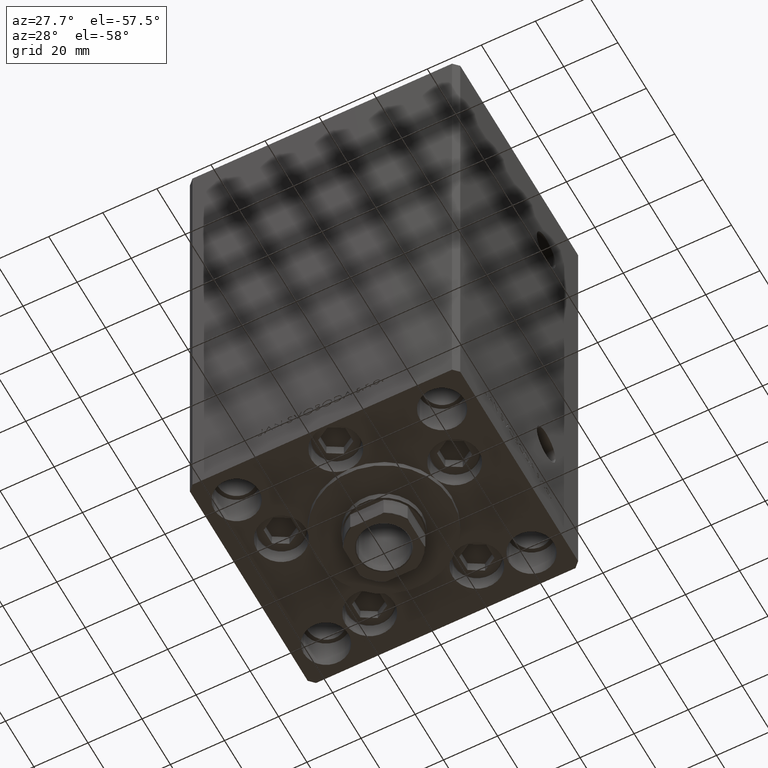
[diagram: clean part render]
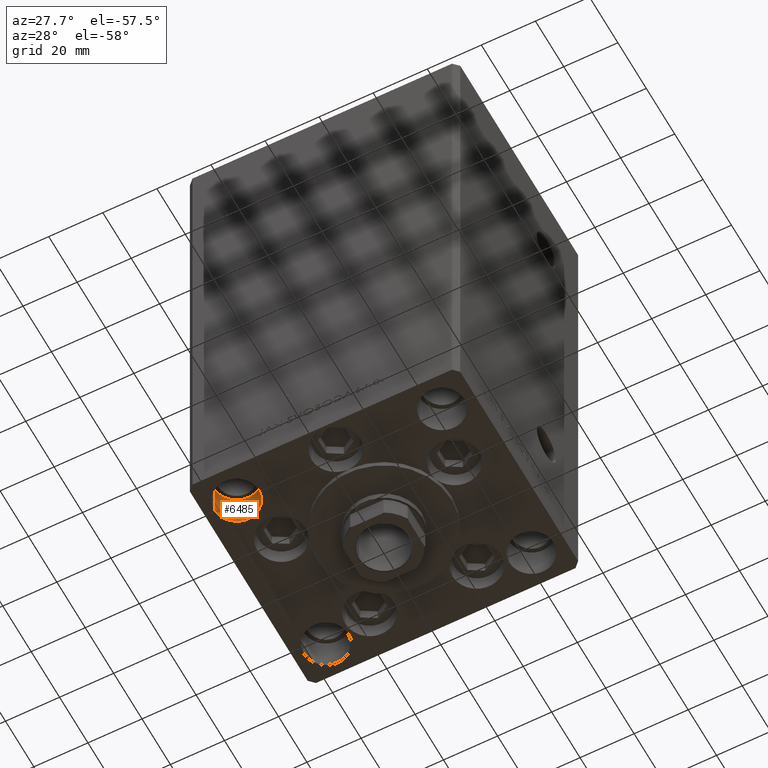
[diagram: same view with one face highlighted and labeled with its STEP entity id]
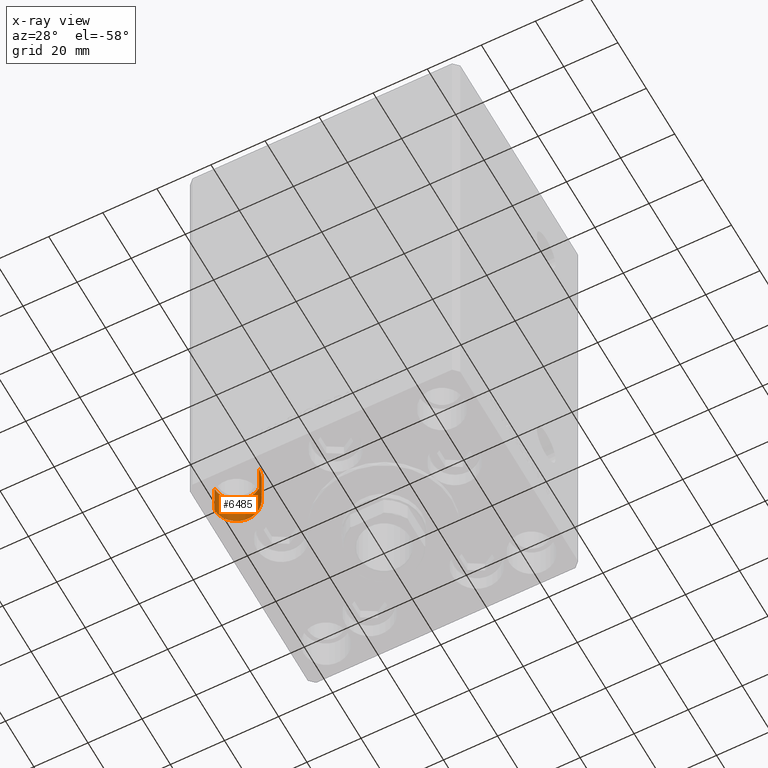
[diagram: x-ray of the same camera — body ghosted, the highlighted face saturated]
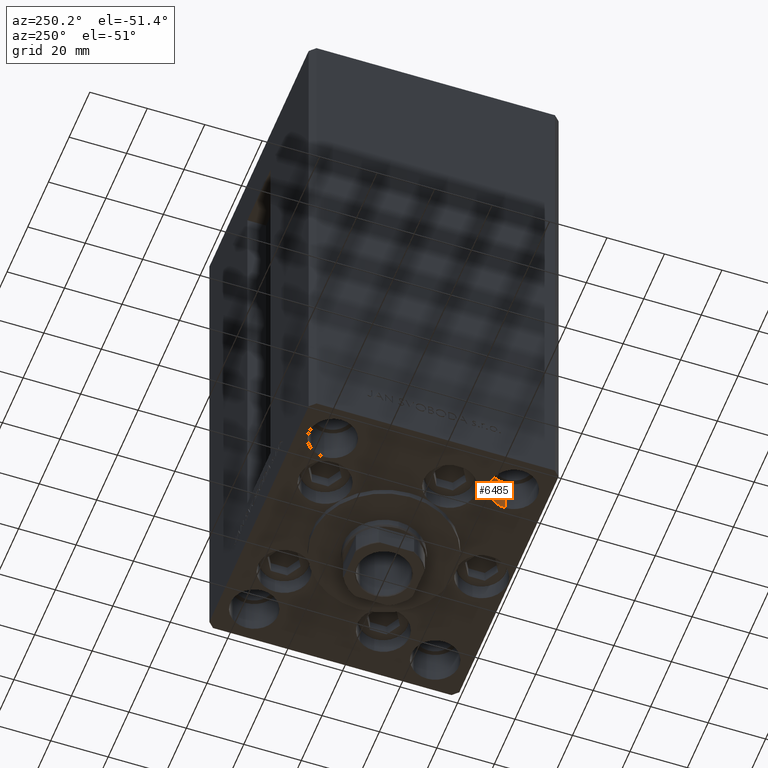
[diagram: same view with one face highlighted and labeled with its STEP entity id]
A machine part, auxiliary view. The second image highlights one B-rep face of the part: STEP entity #6485.
The next image is the same camera in x-ray: the body ghosted, the highlighted face saturated — about 0% of this face is hidden behind the body in this view.
A second angle (auxiliary view) of the same face is appended — the face is thin or edge-on in the first view.
In plain terms, the highlighted cylindrical surface (edge-blend (fillet) strip) has radius 8.25 mm, axis along (0, 0, -1).
Its self-contained STEP definition (entity closure, byte-faithful):
#623 = EDGE_CURVE ( 'NONE', #1135, #17373, #4658, .T. ) ;
#874 = VERTEX_POINT ( 'NONE', #39973 ) ;
#1073 = DIRECTION ( 'NONE',  ( 1.000000000000000000, 0.000000000000000000, 0.000000000000000000 ) ) ;
#1135 = VERTEX_POINT ( 'NONE', #42678 ) ;
#2507 = VERTEX_POINT ( 'NONE', #12010 ) ;
#4658 = LINE ( 'NONE', #38781, #12372 ) ;
#5608 = FACE_OUTER_BOUND ( 'NONE', #23084, .T. ) ;
#6485 = ADVANCED_FACE ( 'NONE', ( #5608 ), #20926, .F. ) ;
#7084 = CIRCLE ( 'NONE', #35122, 8.249999999999992895 ) ;
#7261 = ORIENTED_EDGE ( 'NONE', *, *, #40276, .T. ) ;
#9866 = CARTESIAN_POINT ( 'NONE',  ( 38.00000000000000711, -31.50000000000000711, -13.00000000000000000 ) ) ;
#10157 = EDGE_CURVE ( 'NONE', #874, #2507, #11802, .T. ) ;
#11802 = LINE ( 'NONE', #43178, #18189 ) ;
#12010 = CARTESIAN_POINT ( 'NONE',  ( 46.25000000000000000, -31.50000000000000711, 0.000000000000000000 ) ) ;
#12372 = VECTOR ( 'NONE', #16197, 1000.000000000000000 ) ;
#16197 = DIRECTION ( 'NONE',  ( -0.000000000000000000, -0.000000000000000000, 1.000000000000000000 ) ) ;
#17373 = VERTEX_POINT ( 'NONE', #20900 ) ;
#18189 = VECTOR ( 'NONE', #42929, 1000.000000000000000 ) ;
#19044 = EDGE_CURVE ( 'NONE', #874, #1135, #36842, .T. ) ;
#20900 = CARTESIAN_POINT ( 'NONE',  ( 29.75000000000001066, -31.50000000000000711, 0.000000000000000000 ) ) ;
#20926 = CYLINDRICAL_SURFACE ( 'NONE', #34148, 8.249999999999992895 ) ;
#23084 = EDGE_LOOP ( 'NONE', ( #32732, #33556, #45836, #7261 ) ) ;
#23940 = CARTESIAN_POINT ( 'NONE',  ( 38.00000000000000711, -31.50000000000000711, -13.00000000000000000 ) ) ;
#24194 = DIRECTION ( 'NONE',  ( 1.000000000000000000, 0.000000000000000000, 0.000000000000000000 ) ) ;
#25202 = DIRECTION ( 'NONE',  ( 0.000000000000000000, 0.000000000000000000, 1.000000000000000000 ) ) ;
#32732 = ORIENTED_EDGE ( 'NONE', *, *, #623, .F. ) ;
#33556 = ORIENTED_EDGE ( 'NONE', *, *, #19044, .F. ) ;
#34148 = AXIS2_PLACEMENT_3D ( 'NONE', #23940, #35715, #24194 ) ;
#35122 = AXIS2_PLACEMENT_3D ( 'NONE', #38953, #43216, #1073 ) ;
#35715 = DIRECTION ( 'NONE',  ( -0.000000000000000000, -0.000000000000000000, 1.000000000000000000 ) ) ;
#36842 = CIRCLE ( 'NONE', #44835, 8.249999999999992895 ) ;
#38781 = CARTESIAN_POINT ( 'NONE',  ( 29.75000000000001066, -31.50000000000000711, -13.00000000000000000 ) ) ;
#38953 = CARTESIAN_POINT ( 'NONE',  ( 38.00000000000000711, -31.50000000000000711, 0.000000000000000000 ) ) ;
#39973 = CARTESIAN_POINT ( 'NONE',  ( 46.25000000000000000, -31.50000000000000711, -13.00000000000000000 ) ) ;
#40276 = EDGE_CURVE ( 'NONE', #2507, #17373, #7084, .T. ) ;
#42678 = CARTESIAN_POINT ( 'NONE',  ( 29.75000000000001066, -31.50000000000000711, -13.00000000000000000 ) ) ;
#42929 = DIRECTION ( 'NONE',  ( -0.000000000000000000, -0.000000000000000000, 1.000000000000000000 ) ) ;
#43178 = CARTESIAN_POINT ( 'NONE',  ( 46.25000000000000000, -31.50000000000000711, -13.00000000000000000 ) ) ;
#43216 = DIRECTION ( 'NONE',  ( 0.000000000000000000, 0.000000000000000000, 1.000000000000000000 ) ) ;
#44835 = AXIS2_PLACEMENT_3D ( 'NONE', #9866, #25202, #48268 ) ;
#45836 = ORIENTED_EDGE ( 'NONE', *, *, #10157, .T. ) ;
#48268 = DIRECTION ( 'NONE',  ( 1.000000000000000000, 0.000000000000000000, 0.000000000000000000 ) ) ;